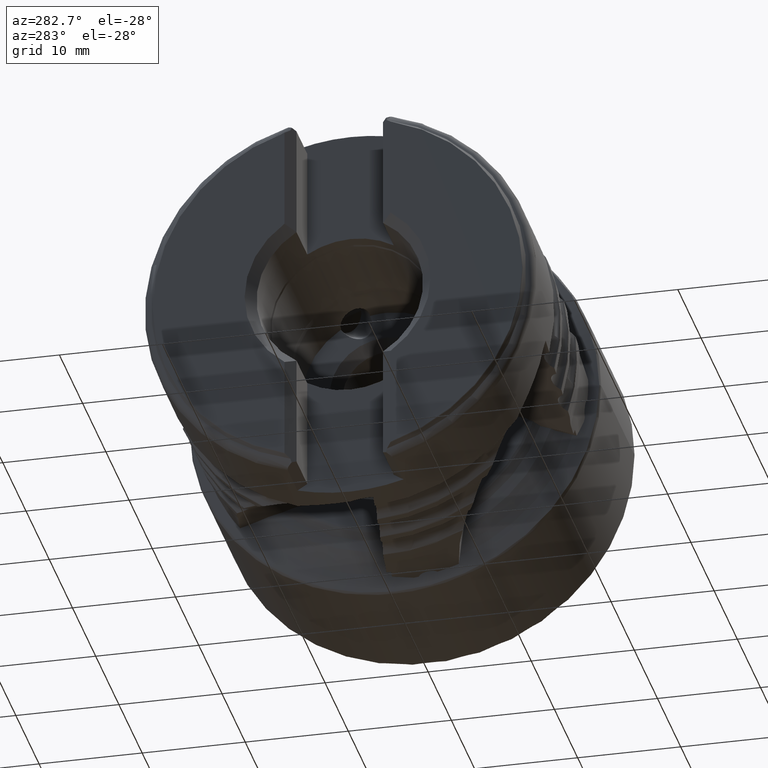
[diagram: clean part render]
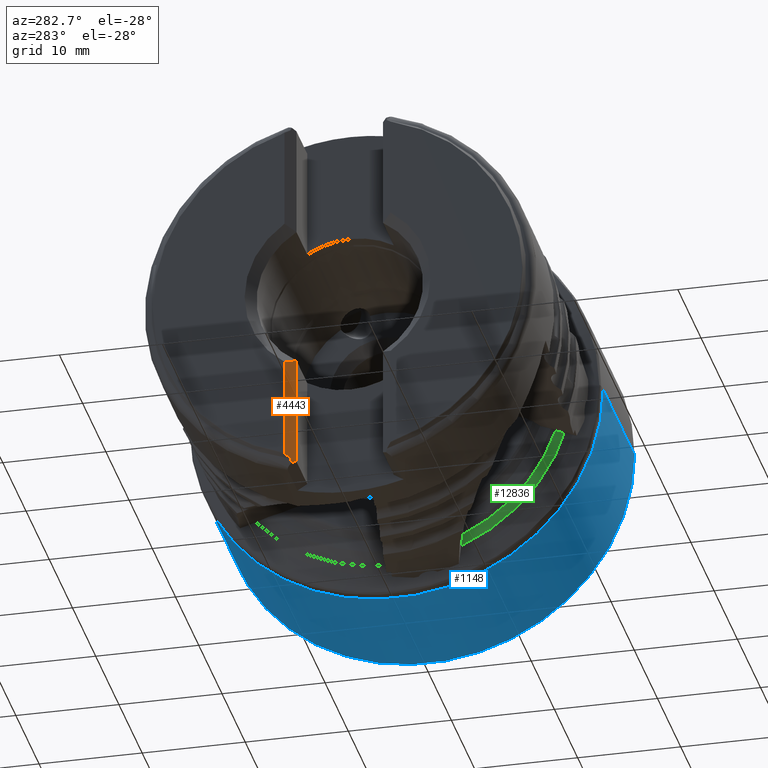
[diagram: same view with three faces highlighted in distinct colors, each labeled with its STEP entity id]
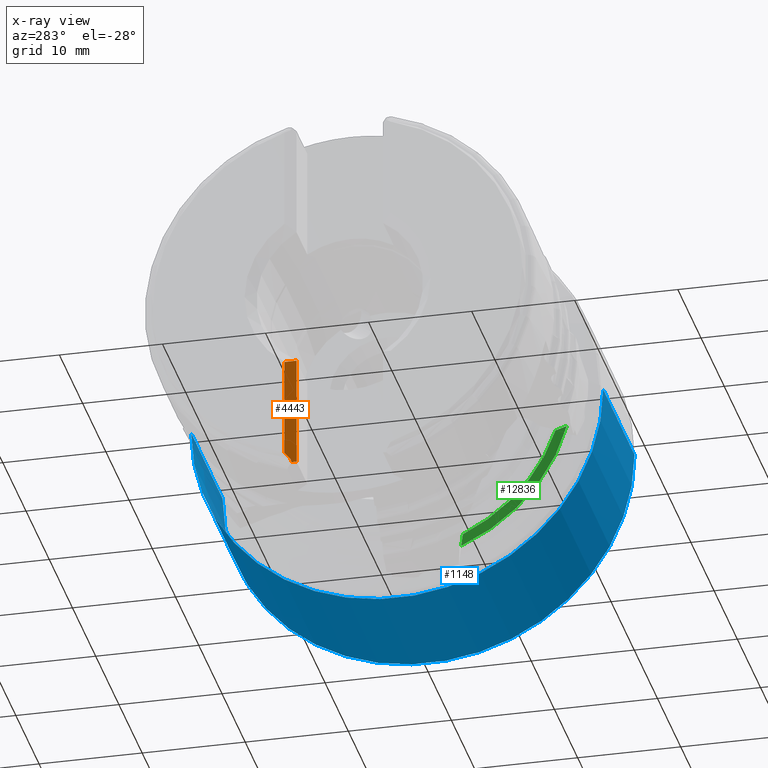
[diagram: x-ray of the same camera — body ghosted, the three highlighted faces saturated]
A machine part, auxiliary view with three faces highlighted in distinct colors.
The next image is the same camera in x-ray (body ghosted, the three faces saturated) — at least one of them is partly hidden behind the body in this view.
Their STEP definitions:

[orange] entity #4443 — the highlighted planar face has unit normal (0.7071, 0.7071, -0).
#215 = B_SPLINE_CURVE_WITH_KNOTS ( 'NONE', 3,
 ( #13955, #4312, #13897, #9182 ),
 .UNSPECIFIED., .F., .F.,
 ( 4, 4 ),
 ( 0.0004040308048384490800, 0.0004958398011923587480 ),
 .UNSPECIFIED. ) ;
#488 = CARTESIAN_POINT ( 'NONE',  ( -38.41708559003721746, 4.567085590037224030, -17.92550201996623116 ) ) ;
#697 = LINE ( 'NONE', #13680, #14549 ) ;
#1210 = CARTESIAN_POINT ( 'NONE',  ( -38.99999999999998579, 5.149999999999995026, -17.16641755237196421 ) ) ;
#1346 = AXIS2_PLACEMENT_3D ( 'NONE', #9812, #9708, #9921 ) ;
#1551 = PLANE ( 'NONE',  #1346 ) ;
#1718 = VECTOR ( 'NONE', #3220, 1000.000000000000000 ) ;
#1788 = EDGE_LOOP ( 'NONE', ( #15360, #15449, #3962, #7733, #6147, #1861, #14159 ) ) ;
#1810 = CARTESIAN_POINT ( 'NONE',  ( -38.94956494406126524, 5.099564944061274474, -17.22440629066486295 ) ) ;
#1861 = ORIENTED_EDGE ( 'NONE', *, *, #12360, .T. ) ;
#1943 = CARTESIAN_POINT ( 'NONE',  ( -38.04999999999999005, 4.200000000000000178, -17.69407512991925913 ) ) ;
#2271 = LINE ( 'NONE', #6629, #12920 ) ;
#2686 = EDGE_CURVE ( 'NONE', #4239, #10426, #7876, .T. ) ;
#3220 = DIRECTION ( 'NONE',  ( -1.068149596138170250E-16, 1.068149596138168648E-16, -1.000000000000000000 ) ) ;
#3962 = ORIENTED_EDGE ( 'NONE', *, *, #12072, .T. ) ;
#4239 = VERTEX_POINT ( 'NONE', #5691 ) ;
#4312 = CARTESIAN_POINT ( 'NONE',  ( -38.98511757043269199, 5.135117570432702117, -17.18850047723910279 ) ) ;
#4443 = ADVANCED_FACE ( 'NONE', ( #7104 ), #1551, .F. ) ;
#5431 = CARTESIAN_POINT ( 'NONE',  ( -38.36516499799233060, 4.515164997992336282, -7.073861048405368557 ) ) ;
#5479 = CARTESIAN_POINT ( 'NONE',  ( -38.99999999999998579, 5.149999999999994138, -7.411351091400266711 ) ) ;
#5691 = CARTESIAN_POINT ( 'NONE',  ( -38.99999999999998579, 5.149999999999994138, -7.411351091400266711 ) ) ;
#5702 = VERTEX_POINT ( 'NONE', #15312 ) ;
#6147 = ORIENTED_EDGE ( 'NONE', *, *, #14139, .T. ) ;
#6481 = VERTEX_POINT ( 'NONE', #14325 ) ;
#6517 = DIRECTION ( 'NONE',  ( 0.6458391284013966782, -0.6458391284013957900, 0.4071653723629373722 ) ) ;
#6543 = CARTESIAN_POINT ( 'NONE',  ( -38.81078648231307682, 4.960786482313091383, -17.34857189730099947 ) ) ;
#6629 = CARTESIAN_POINT ( 'NONE',  ( -38.04999999999999005, 4.200000000000000178, 33.17500000000000426 ) ) ;
#6652 = CARTESIAN_POINT ( 'NONE',  ( -38.50577448888336818, 4.655774488883379192, -17.71317960075725040 ) ) ;
#6908 = CARTESIAN_POINT ( 'NONE',  ( -38.99999999999998579, 5.149999999999991473, 33.17500000000000426 ) ) ;
#7104 = FACE_OUTER_BOUND ( 'NONE', #1788, .T. ) ;
#7135 = LINE ( 'NONE', #6908, #1718 ) ;
#7428 =( BOUNDED_CURVE ( )  B_SPLINE_CURVE ( 3, ( #7681, #6543, #13710, #13603 ),
 .UNSPECIFIED., .F., .T. ) 
 B_SPLINE_CURVE_WITH_KNOTS ( ( 4, 4 ),
 ( 3.882752403795098228, 3.902544691301606417 ),
 .UNSPECIFIED. ) 
 CURVE ( )  GEOMETRIC_REPRESENTATION_ITEM ( )  RATIONAL_B_SPLINE_CURVE ( ( 1.000000000000000000, 0.9999673557126875778, 0.9999673557126875778, 1.000000000000000000 ) ) 
 REPRESENTATION_ITEM ( '' )  );
#7681 = CARTESIAN_POINT ( 'NONE',  ( -38.94956494406126524, 5.099564944061274474, -17.22440629066486295 ) ) ;
#7733 = ORIENTED_EDGE ( 'NONE', *, *, #9875, .T. ) ;
#7759 = CARTESIAN_POINT ( 'NONE',  ( -38.68192301352107165, 4.831923013521080890, -7.245045608445075835 ) ) ;
#7821 = CARTESIAN_POINT ( 'NONE',  ( -38.04999999999999005, 4.200000000000000178, -6.896783670668518162 ) ) ;
#7876 = B_SPLINE_CURVE_WITH_KNOTS ( 'NONE', 3,
 ( #5479, #7759, #5431, #7821 ),
 .UNSPECIFIED., .F., .F.,
 ( 4, 4 ),
 ( 7.566887547755001464E-05, 0.001514341480787450645 ),
 .UNSPECIFIED. ) ;
#8304 = VERTEX_POINT ( 'NONE', #1810 ) ;
#9182 = CARTESIAN_POINT ( 'NONE',  ( -38.94956494406126524, 5.099564944061274474, -17.22440629066486295 ) ) ;
#9708 = DIRECTION ( 'NONE',  ( 0.7071067811865470176, 0.7071067811865481278, -0.0000000000000000000 ) ) ;
#9812 = CARTESIAN_POINT ( 'NONE',  ( -39.04999999999999716, 5.200000000000000178, 33.17500000000000426 ) ) ;
#9875 = EDGE_CURVE ( 'NONE', #8304, #5702, #7428, .T. ) ;
#9921 = DIRECTION ( 'NONE',  ( -0.7071067811865481278, 0.7071067811865470176, 0.0000000000000000000 ) ) ;
#10426 = VERTEX_POINT ( 'NONE', #11277 ) ;
#10549 = VERTEX_POINT ( 'NONE', #1943 ) ;
#11205 = CARTESIAN_POINT ( 'NONE',  ( -38.46678379136878334, 4.616783791368785472, -17.82357268792077676 ) ) ;
#11277 = CARTESIAN_POINT ( 'NONE',  ( -38.04999999999999005, 4.200000000000000178, -6.896783670668518162 ) ) ;
#12043 = B_SPLINE_CURVE_WITH_KNOTS ( 'NONE', 3,
 ( #13833, #6652, #11205, #488 ),
 .UNSPECIFIED., .F., .F.,
 ( 4, 4 ),
 ( 0.001376236126235871014, 0.001743834450343666968 ),
 .UNSPECIFIED. ) ;
#12072 = EDGE_CURVE ( 'NONE', #14358, #8304, #215, .T. ) ;
#12360 = EDGE_CURVE ( 'NONE', #6481, #10549, #697, .T. ) ;
#12920 = VECTOR ( 'NONE', #15010, 1000.000000000000000 ) ;
#13603 = CARTESIAN_POINT ( 'NONE',  ( -38.52876197310683892, 4.678761973106848160, -17.59349912322756637 ) ) ;
#13680 = CARTESIAN_POINT ( 'NONE',  ( -22.17903375958879408, -11.67096624041117359, -7.688320453778988650 ) ) ;
#13710 = CARTESIAN_POINT ( 'NONE',  ( -38.67051424624109046, 4.820514246241107692, -17.47160685787718037 ) ) ;
#13833 = CARTESIAN_POINT ( 'NONE',  ( -38.52876197310683892, 4.678761973106848160, -17.59349912322756637 ) ) ;
#13897 = CARTESIAN_POINT ( 'NONE',  ( -38.96798269932750003, 5.117982699327506602, -17.20792785642729328 ) ) ;
#13955 = CARTESIAN_POINT ( 'NONE',  ( -38.99999999999998579, 5.149999999999995026, -17.16641755237196421 ) ) ;
#14139 = EDGE_CURVE ( 'NONE', #5702, #6481, #12043, .T. ) ;
#14159 = ORIENTED_EDGE ( 'NONE', *, *, #14580, .F. ) ;
#14181 = EDGE_CURVE ( 'NONE', #4239, #14358, #7135, .T. ) ;
#14325 = CARTESIAN_POINT ( 'NONE',  ( -38.41708559003721746, 4.567085590037224030, -17.92550201996623116 ) ) ;
#14358 = VERTEX_POINT ( 'NONE', #1210 ) ;
#14549 = VECTOR ( 'NONE', #6517, 1000.000000000000114 ) ;
#14580 = EDGE_CURVE ( 'NONE', #10426, #10549, #2271, .T. ) ;
#15010 = DIRECTION ( 'NONE',  ( -0.0000000000000000000, -0.0000000000000000000, -1.000000000000000000 ) ) ;
#15312 = CARTESIAN_POINT ( 'NONE',  ( -38.52876197310683892, 4.678761973106848160, -17.59349912322756637 ) ) ;
#15360 = ORIENTED_EDGE ( 'NONE', *, *, #2686, .F. ) ;
#15449 = ORIENTED_EDGE ( 'NONE', *, *, #14181, .T. ) ;

[blue] entity #1148 — the highlighted cylindrical surface (partial cylindrical patch) has radius 19.9884 mm, axis along (1, 0, -0).
#324 = CARTESIAN_POINT ( 'NONE',  ( -13.31762886690225578, -2.462451322025798519E-15, 0.0000000000000000000 ) ) ;
#1048 = ORIENTED_EDGE ( 'NONE', *, *, #12529, .T. ) ;
#1148 = ADVANCED_FACE ( 'NONE', ( #5788 ), #14886, .T. ) ;
#1266 = EDGE_CURVE ( 'NONE', #10973, #8854, #1986, .T. ) ;
#1834 = VECTOR ( 'NONE', #9268, 1000.000000000000000 ) ;
#1986 = LINE ( 'NONE', #10477, #5911 ) ;
#2047 = CARTESIAN_POINT ( 'NONE',  ( -13.31762886690225756, 19.98841051383012157, 0.0000000000000000000 ) ) ;
#2529 = DIRECTION ( 'NONE',  ( -8.678646432524184331E-17, 1.000000000000000000, 0.0000000000000000000 ) ) ;
#2550 = EDGE_LOOP ( 'NONE', ( #4701, #2562, #1048, #7038 ) ) ;
#2562 = ORIENTED_EDGE ( 'NONE', *, *, #12705, .T. ) ;
#2684 = DIRECTION ( 'NONE',  ( 1.000000000000000000, 1.226297045315739129E-16, -0.0000000000000000000 ) ) ;
#3066 = AXIS2_PLACEMENT_3D ( 'NONE', #9123, #10126, #8953 ) ;
#4001 = CIRCLE ( 'NONE', #6212, 19.98841051383012513 ) ;
#4701 = ORIENTED_EDGE ( 'NONE', *, *, #1266, .F. ) ;
#5773 = DIRECTION ( 'NONE',  ( 1.000000000000000000, 1.226297045315739129E-16, -0.0000000000000000000 ) ) ;
#5788 = FACE_OUTER_BOUND ( 'NONE', #2550, .T. ) ;
#5911 = VECTOR ( 'NONE', #5773, 1000.000000000000000 ) ;
#6212 = AXIS2_PLACEMENT_3D ( 'NONE', #324, #2684, #2529 ) ;
#6655 = DIRECTION ( 'NONE',  ( 1.000000000000000000, 1.226297045315739129E-16, -0.0000000000000000000 ) ) ;
#6881 = VERTEX_POINT ( 'NONE', #2047 ) ;
#7038 = ORIENTED_EDGE ( 'NONE', *, *, #9517, .F. ) ;
#8854 = VERTEX_POINT ( 'NONE', #13744 ) ;
#8953 = DIRECTION ( 'NONE',  ( -1.301796964878627465E-16, 1.000000000000000000, 0.0000000000000000000 ) ) ;
#9123 = CARTESIAN_POINT ( 'NONE',  ( 6.762753218596304627, 0.0000000000000000000, 0.0000000000000000000 ) ) ;
#9268 = DIRECTION ( 'NONE',  ( 1.000000000000000000, 1.226297045315739129E-16, -0.0000000000000000000 ) ) ;
#9517 = EDGE_CURVE ( 'NONE', #8854, #11336, #14457, .T. ) ;
#9523 = CARTESIAN_POINT ( 'NONE',  ( 0.1845676435295250384, 19.98841051383012868, 0.0000000000000000000 ) ) ;
#10114 = CARTESIAN_POINT ( 'NONE',  ( 0.1845676435295274809, -8.066809534243005831E-16, 0.0000000000000000000 ) ) ;
#10126 = DIRECTION ( 'NONE',  ( 1.000000000000000000, 1.226297045315739129E-16, -0.0000000000000000000 ) ) ;
#10159 = CARTESIAN_POINT ( 'NONE',  ( -13.31762886690225400, -19.98841051383012868, 2.447874295580536636E-15 ) ) ;
#10477 = CARTESIAN_POINT ( 'NONE',  ( 6.762753218596307292, -19.98841051383012868, 2.447874295580537030E-15 ) ) ;
#10516 = CARTESIAN_POINT ( 'NONE',  ( 6.762753218596301963, 19.98841051383012868, 0.0000000000000000000 ) ) ;
#10973 = VERTEX_POINT ( 'NONE', #10159 ) ;
#11336 = VERTEX_POINT ( 'NONE', #9523 ) ;
#12474 = AXIS2_PLACEMENT_3D ( 'NONE', #10114, #6655, #15040 ) ;
#12529 = EDGE_CURVE ( 'NONE', #6881, #11336, #14060, .T. ) ;
#12705 = EDGE_CURVE ( 'NONE', #10973, #6881, #4001, .T. ) ;
#13744 = CARTESIAN_POINT ( 'NONE',  ( 0.1845676435295299234, -19.98841051383012868, 2.447874295580537030E-15 ) ) ;
#14060 = LINE ( 'NONE', #10516, #1834 ) ;
#14457 = CIRCLE ( 'NONE', #12474, 19.98841051383012868 ) ;
#14886 = CYLINDRICAL_SURFACE ( 'NONE', #3066, 19.98841051383012868 ) ;
#15040 = DIRECTION ( 'NONE',  ( -1.220434654573713217E-16, 1.000000000000000000, 0.0000000000000000000 ) ) ;

[green] entity #12836 — the highlighted conical surface has half-angle 59.515 deg.
#224 = ORIENTED_EDGE ( 'NONE', *, *, #14486, .T. ) ;
#1287 = AXIS2_PLACEMENT_3D ( 'NONE', #11144, #10997, #8635 ) ;
#1307 = AXIS2_PLACEMENT_3D ( 'NONE', #12326, #5232, #6393 ) ;
#1519 = CARTESIAN_POINT ( 'NONE',  ( -15.37334619528348867, -6.728050576091725077, -15.84559439392481117 ) ) ;
#2398 =( BOUNDED_CURVE ( )  B_SPLINE_CURVE ( 3, ( #5326, #6722, #6626, #7715 ),
 .UNSPECIFIED., .F., .T. ) 
 B_SPLINE_CURVE_WITH_KNOTS ( ( 4, 4 ),
 ( 2.276066052282418983, 2.314480224494370741 ),
 .UNSPECIFIED. ) 
 CURVE ( )  GEOMETRIC_REPRESENTATION_ITEM ( )  RATIONAL_B_SPLINE_CURVE ( ( 1.000000000000000000, 0.9998770330615087687, 0.9998770330615087687, 1.000000000000000000 ) ) 
 REPRESENTATION_ITEM ( '' )  );
#2410 = AXIS2_PLACEMENT_3D ( 'NONE', #9981, #5121, #2834 ) ;
#2706 = EDGE_CURVE ( 'NONE', #11456, #6564, #2398, .T. ) ;
#2834 = DIRECTION ( 'NONE',  ( -9.925273776856437773E-17, 1.000000000000000000, 0.0000000000000000000 ) ) ;
#3212 = ORIENTED_EDGE ( 'NONE', *, *, #11213, .F. ) ;
#5121 = DIRECTION ( 'NONE',  ( 1.000000000000000000, 1.226297045315739129E-16, -0.0000000000000000000 ) ) ;
#5227 = CARTESIAN_POINT ( 'NONE',  ( -15.21782131690994966, -6.644121070637091897, -16.16572139653349183 ) ) ;
#5232 = DIRECTION ( 'NONE',  ( 1.000000000000000000, 1.226297045315739129E-16, -0.0000000000000000000 ) ) ;
#5326 = CARTESIAN_POINT ( 'NONE',  ( -15.21782131690994966, -16.88320130291958421, -4.520221989761066261 ) ) ;
#6109 = CARTESIAN_POINT ( 'NONE',  ( -15.67795166890711656, -15.89252437989794053, -5.117760013423975352 ) ) ;
#6227 = EDGE_LOOP ( 'NONE', ( #3212, #9193, #10362, #224 ) ) ;
#6393 = DIRECTION ( 'NONE',  ( -9.925273776856437773E-17, 1.000000000000000000, 0.0000000000000000000 ) ) ;
#6564 = VERTEX_POINT ( 'NONE', #6109 ) ;
#6626 = CARTESIAN_POINT ( 'NONE',  ( -15.52719167492223384, -16.22345391470492615, -4.925587140244783946 ) ) ;
#6722 = CARTESIAN_POINT ( 'NONE',  ( -15.37379602833014047, -16.55372016754213504, -4.726383303537878611 ) ) ;
#7532 = VERTEX_POINT ( 'NONE', #14078 ) ;
#7715 = CARTESIAN_POINT ( 'NONE',  ( -15.67795166890711656, -15.89252437989794053, -5.117760013423975352 ) ) ;
#8056 = CARTESIAN_POINT ( 'NONE',  ( -15.21782131690994966, -6.644121070637091897, -16.16572139653349183 ) ) ;
#8635 = DIRECTION ( 'NONE',  ( -2.077983355058087607E-16, 1.000000000000000000, 0.0000000000000000000 ) ) ;
#8672 = CONICAL_SURFACE ( 'NONE', #1307, 17.47784005738765600, 1.038735383309899785 ) ;
#9193 = ORIENTED_EDGE ( 'NONE', *, *, #2706, .T. ) ;
#9611 = VERTEX_POINT ( 'NONE', #8056 ) ;
#9970 = B_SPLINE_CURVE_WITH_KNOTS ( 'NONE', 3,
 ( #14603, #9989, #1519, #5227 ),
 .UNSPECIFIED., .F., .F.,
 ( 4, 4 ),
 ( 4.838780638623029168E-07, 0.001097459074991314655 ),
 .UNSPECIFIED. ) ;
#9981 = CARTESIAN_POINT ( 'NONE',  ( -15.21782131690994966, -2.695471360723369424E-15, 0.0000000000000000000 ) ) ;
#9989 = CARTESIAN_POINT ( 'NONE',  ( -15.52681405101321843, -6.813580273550432054, -15.52491017621733782 ) ) ;
#10362 = ORIENTED_EDGE ( 'NONE', *, *, #11534, .T. ) ;
#10785 = CARTESIAN_POINT ( 'NONE',  ( -15.21782131690994966, -16.88320130291958421, -4.520221989761066261 ) ) ;
#10997 = DIRECTION ( 'NONE',  ( 1.000000000000000000, 1.226297045315739129E-16, -0.0000000000000000000 ) ) ;
#11144 = CARTESIAN_POINT ( 'NONE',  ( -15.67795166890712011, -2.751897009834791773E-15, 0.0000000000000000000 ) ) ;
#11213 = EDGE_CURVE ( 'NONE', #11456, #9611, #12506, .T. ) ;
#11456 = VERTEX_POINT ( 'NONE', #10785 ) ;
#11534 = EDGE_CURVE ( 'NONE', #6564, #7532, #12700, .T. ) ;
#12326 = CARTESIAN_POINT ( 'NONE',  ( -15.21782131690994966, -2.695471360723369424E-15, 0.0000000000000000000 ) ) ;
#12506 = CIRCLE ( 'NONE', #2410, 17.47784005738765600 ) ;
#12700 = CIRCLE ( 'NONE', #1287, 16.69622109103289631 ) ;
#12836 = ADVANCED_FACE ( 'NONE', ( #15440 ), #8672, .T. ) ;
#14078 = CARTESIAN_POINT ( 'NONE',  ( -15.67795166890712011, -6.900547063911282031, -15.20349462917645056 ) ) ;
#14486 = EDGE_CURVE ( 'NONE', #7532, #9611, #9970, .T. ) ;
#14603 = CARTESIAN_POINT ( 'NONE',  ( -15.67795166890712011, -6.900547063911282031, -15.20349462917645056 ) ) ;
#15440 = FACE_OUTER_BOUND ( 'NONE', #6227, .T. ) ;